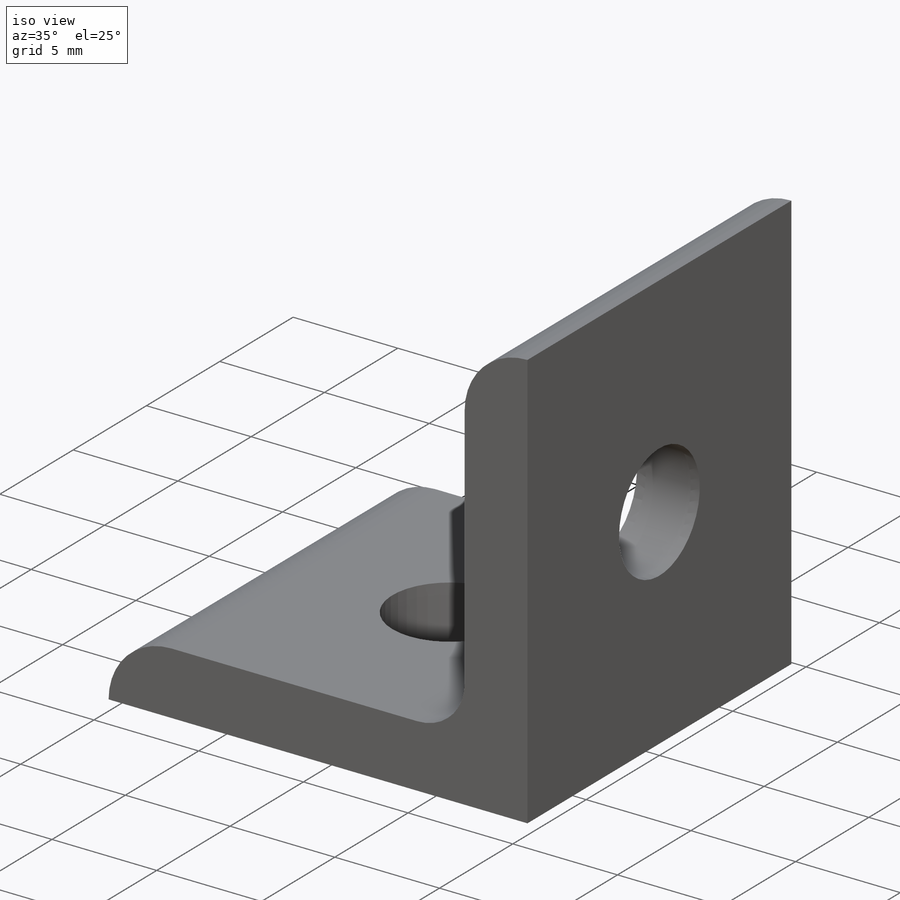
[diagram: iso view]
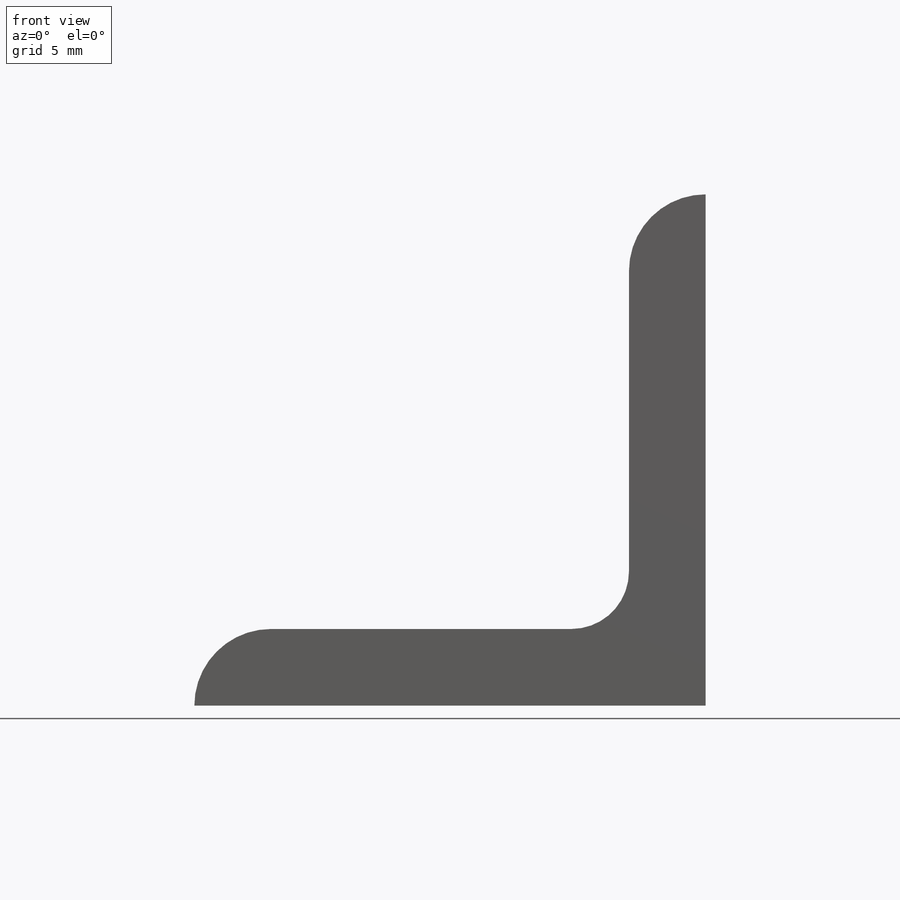
[diagram: front view]
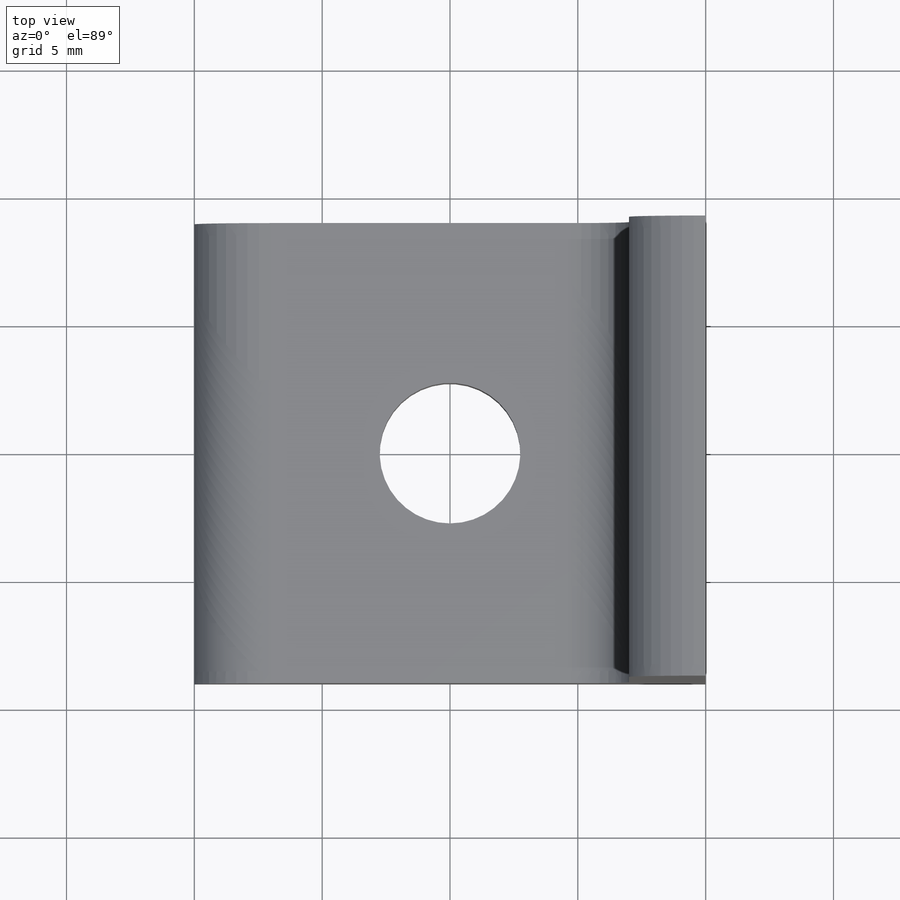
[diagram: top view]
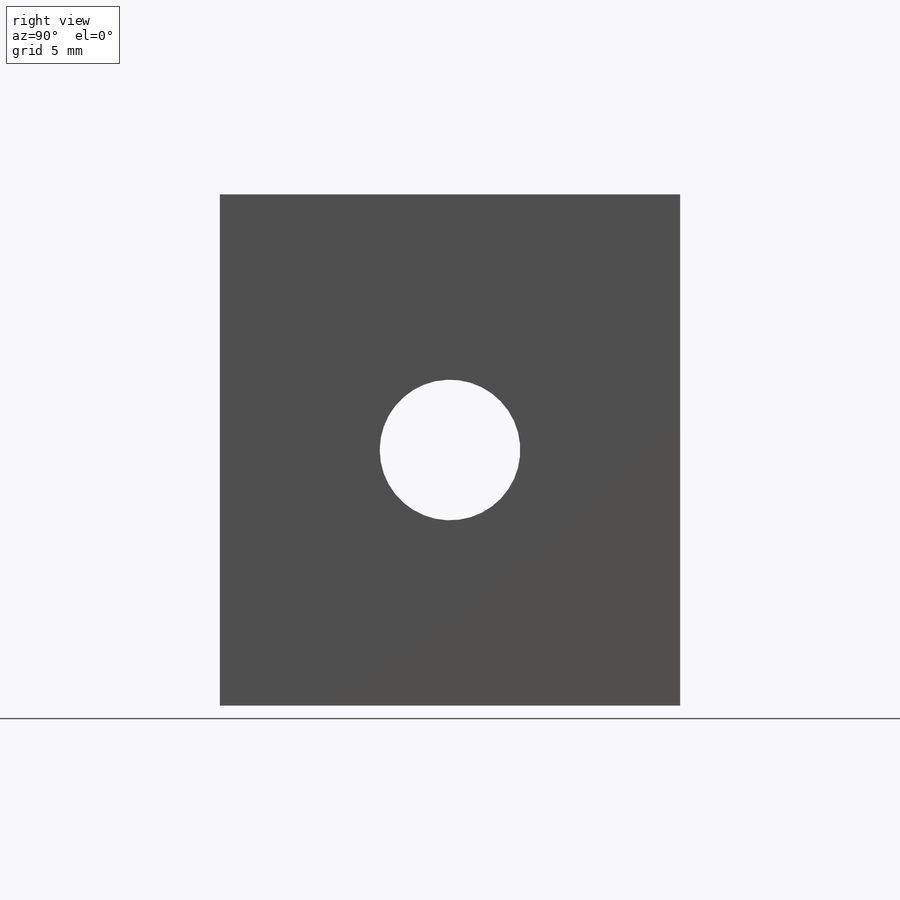
[diagram: right view]
SOLIDWORKS PART (.sldprt)
format: sldprt  version: not decoded by parser v0  size: 336,384 bytes
history: native  units: mm
features: sketch x9, cut_extrude x8, material x1, extrude x1 (+17 scaffold rows collapsed; 4 parser-record rows omitted)
feature tree (40):
  scaffold x17  (default folders/planes/origin — collapsed)
  material  "Material <not specified>"
  sketch  "Sketch1"  dims[D1=3.0mm D3=2.25mm D=3.0mm D2=3.0mm B=20.0mm C=20.0mm]
  extrude  "Extrude1"  Depth=18mm A=18mm
  parser-record x4  (decoder bookkeeping rows leaked as tree rows — omitted from the tree; the rows remain in map.json)
  sketch  "Sketch2"  dims[hole=5.5mm hole height=10.0mm]
  cut_extrude  "Cut-Extrude1"  [1 undecoded]
  sketch  "Sketch3"  dims[D1=5.5mm D2=10.0mm]
  cut_extrude  "Cut-Extrude2"  [1 undecoded]
  sketch  "Sketch4"  dims[D1=5.5mm D2=10.0mm D3=20.0mm]
  cut_extrude  "Cut-Extrude3"  [1 undecoded]
  sketch  "Sketch5"  dims[c1.D1=5.5mm c1.D3=5.5mm c1.D2=10.0mm c2.D3=20.0mm]
  cut_extrude  "Cut-Extrude4"  [1 undecoded]
  sketch  "Sketch6"  dims[D1=5.5mm distance=25.4mm D2=10.0mm]
  cut_extrude  "Cut-Extrude5"  [1 undecoded]
  sketch  "Sketch7"  dims[D2=5.5mm D1=25.4mm D3=10.0mm]
  cut_extrude  "Cut-Extrude6"  [1 undecoded]
  sketch  "Sketch8"  dims[distance=25.4mm D2=10.0mm D3=20.0mm]
  cut_extrude  "Cut-Extrude7"  [1 undecoded]
  sketch  "Sketch9"  dims[D1=5.5mm D2=25.4mm D3=10.0mm D4=20.0mm]
  cut_extrude  "Cut-Extrude8"  [1 undecoded]
decode coverage: 10 of 18 modeling features carry decoded parameters
note: 8 parameter values undecoded
summary: no parameter record found for 8 features
note: suppression state not decoded; provenance and decode notes live in map.json
